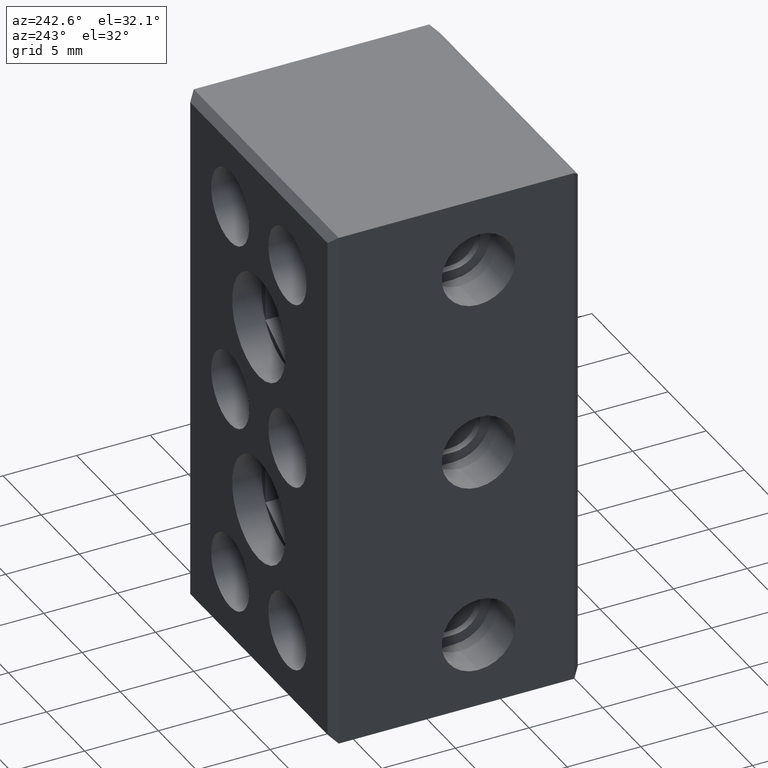
[diagram: clean part render]
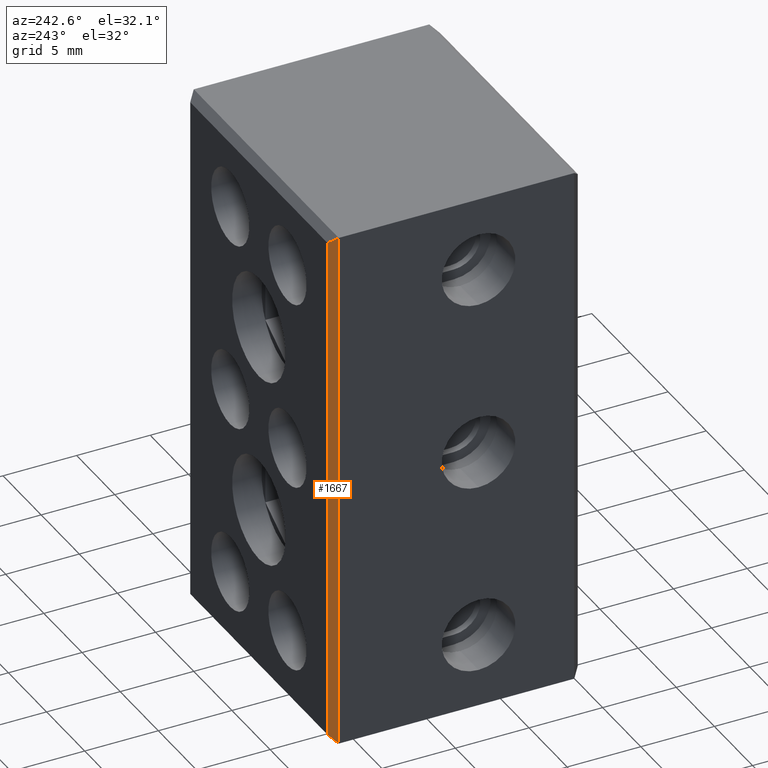
[diagram: same view with one face highlighted and labeled with its STEP entity id]
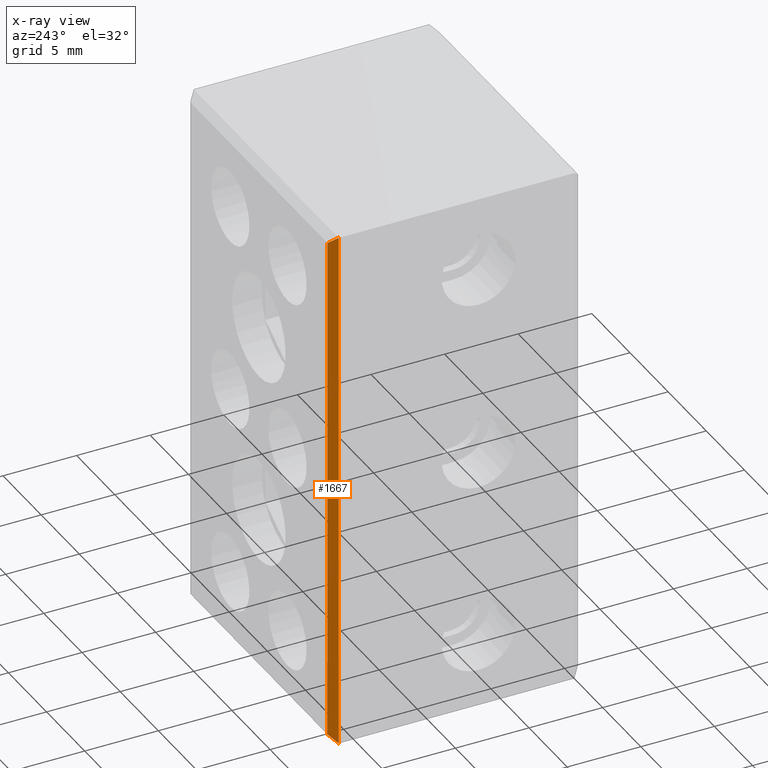
[diagram: x-ray of the same camera — body ghosted, the highlighted face saturated]
A machine part, auxiliary view. The second image highlights one B-rep face of the part: STEP entity #1667.
The next image is the same camera in x-ray: the body ghosted, the highlighted face saturated — about 0% of this face is hidden behind the body in this view.
In plain terms, the highlighted planar face has unit normal (-0.7071, 0.7071, 0).
Its self-contained STEP definition (entity closure, byte-faithful):
#387 = DIRECTION ( 'NONE',  ( -0.0000000000000000000, -0.0000000000000000000, -1.000000000000000000 ) ) ;
#413 = LINE ( 'NONE', #415, #5601 ) ;
#415 = CARTESIAN_POINT ( 'NONE',  ( 6478.257784387862600, 17.00000000000000000, -36.25342650685148300 ) ) ;
#463 = LINE ( 'NONE', #476, #5685 ) ;
#476 = CARTESIAN_POINT ( 'NONE',  ( 6477.757784387872600, 16.50000000001032100, -0.7533531203076648800 ) ) ;
#491 = DIRECTION ( 'NONE',  ( -0.0000000000000000000, -0.0000000000000000000, 1.000000000000000000 ) ) ;
#525 = DIRECTION ( 'NONE',  ( -0.5773502691897308700, -0.5773502691894184500, 0.5773502691897278700 ) ) ;
#532 = LINE ( 'NONE', #550, #5696 ) ;
#550 = CARTESIAN_POINT ( 'NONE',  ( 6478.257784387862600, 17.00000000000000000, -0.5034264916452535500 ) ) ;
#599 = CARTESIAN_POINT ( 'NONE',  ( 6477.757784387872600, 16.50000000001032100, -36.00342649165533300 ) ) ;
#609 = LINE ( 'NONE', #599, #5712 ) ;
#628 = DIRECTION ( 'NONE',  ( 0.5773502691897299800, 0.5773502691894174500, 0.5773502691897299800 ) ) ;
#1293 = EDGE_CURVE ( 'NONE', #6658, #6640, #413, .T. ) ;
#1324 = EDGE_CURVE ( 'NONE', #2398, #2417, #463, .T. ) ;
#1341 = EDGE_CURVE ( 'NONE', #6658, #2417, #532, .T. ) ;
#1364 = EDGE_CURVE ( 'NONE', #2398, #6640, #609, .T. ) ;
#1667 = ADVANCED_FACE ( 'NONE', ( #3585 ), #3570, .T. ) ;
#2398 = VERTEX_POINT ( 'NONE', #8194 ) ;
#2417 = VERTEX_POINT ( 'NONE', #8243 ) ;
#2573 = EDGE_LOOP ( 'NONE', ( #2988, #2927, #2968, #2874 ) ) ;
#2874 = ORIENTED_EDGE ( 'NONE', *, *, #1324, .T. ) ;
#2927 = ORIENTED_EDGE ( 'NONE', *, *, #1293, .T. ) ;
#2968 = ORIENTED_EDGE ( 'NONE', *, *, #1364, .F. ) ;
#2988 = ORIENTED_EDGE ( 'NONE', *, *, #1341, .F. ) ;
#3570 = PLANE ( 'NONE',  #4285 ) ;
#3571 = CARTESIAN_POINT ( 'NONE',  ( 6478.257784387862600, 17.00000000000000000, -36.25342650685148300 ) ) ;
#3585 = FACE_OUTER_BOUND ( 'NONE', #2573, .T. ) ;
#3593 = DIRECTION ( 'NONE',  ( -0.7071067811863586100, 0.7071067811867364200, 0.0000000000000000000 ) ) ;
#3612 = DIRECTION ( 'NONE',  ( -0.7071067811867364200, -0.7071067811863586100, 0.0000000000000000000 ) ) ;
#4285 = AXIS2_PLACEMENT_3D ( 'NONE', #3571, #3593, #3612 ) ;
#5601 = VECTOR ( 'NONE', #387, 1000.000000000000000 ) ;
#5685 = VECTOR ( 'NONE', #491, 1000.000000000000000 ) ;
#5696 = VECTOR ( 'NONE', #525, 1000.000000000000200 ) ;
#5712 = VECTOR ( 'NONE', #628, 1000.000000000000000 ) ;
#6640 = VERTEX_POINT ( 'NONE', #7305 ) ;
#6658 = VERTEX_POINT ( 'NONE', #7315 ) ;
#7305 = CARTESIAN_POINT ( 'NONE',  ( 6478.257784387862600, 17.00000000000000000, -35.50342649166538000 ) ) ;
#7315 = CARTESIAN_POINT ( 'NONE',  ( 6478.257784387862600, 17.00000000000000000, -0.5034264916452535500 ) ) ;
#8194 = CARTESIAN_POINT ( 'NONE',  ( 6477.757784387872600, 16.50000000001018600, -36.00342649165546800 ) ) ;
#8243 = CARTESIAN_POINT ( 'NONE',  ( 6477.757784387872600, 16.50000000001032100, -0.003426491655296295400 ) ) ;